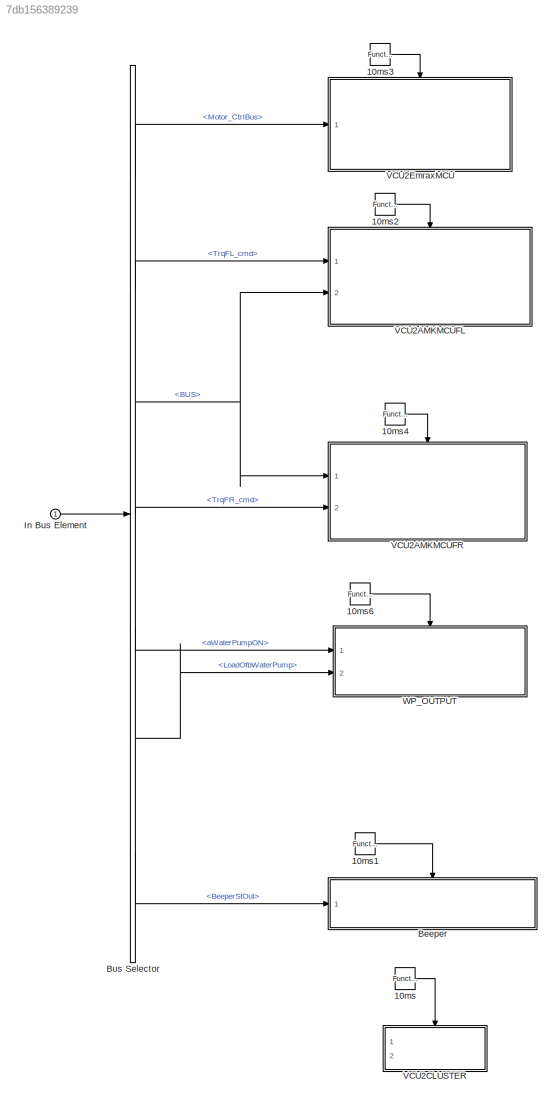
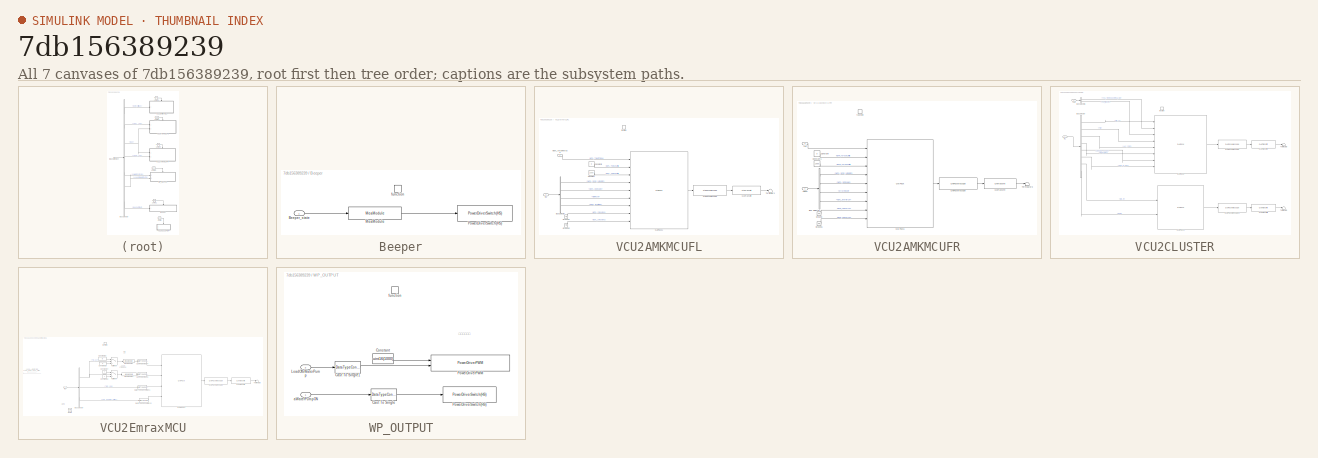
[diagram: thumbnail index - all 7 canvases of the model, root first then tree order]
MODEL slx_7db156389239
KIND model
CONFIG AbsTol = auto
CONFIG EnableMultiTasking = off
CONFIG FixedStep = auto
CONFIG MaxStep = auto
CONFIG MinStep = auto
CONFIG RelTol = 1e-3
CONFIG SampleTimeConstraint = Unconstrained
CONFIG Solver = VariableStepAuto
CONFIG SolverName = VariableStepAuto
CONFIG StartTime = 0.0
CONFIG StopTime = 10.0
BLOCK [Reference] 10ms  REF=simulink/Ports &
Subsystems/Function-Call
Generator
  Commented = on
  Ports = [0, 1]
  SourceBlock = simulink/Ports &\nSubsystems/Function-Call\nGenerator
  SourceProductBaseCode = SL
  SourceProductName = Simulink
  SourceType = Function-Call Generator
BLOCK [Reference] 10ms1  REF=simulink/Ports &
Subsystems/Function-Call
Generator
  Ports = [0, 1]
  SourceBlock = simulink/Ports &\nSubsystems/Function-Call\nGenerator
  SourceProductBaseCode = SL
  SourceProductName = Simulink
  SourceType = Function-Call Generator
BLOCK [Reference] 10ms2  REF=simulink/Ports &
Subsystems/Function-Call
Generator
  Ports = [0, 1]
  SourceBlock = simulink/Ports &\nSubsystems/Function-Call\nGenerator
  SourceProductBaseCode = SL
  SourceProductName = Simulink
  SourceType = Function-Call Generator
BLOCK [Reference] 10ms3  REF=simulink/Ports &
Subsystems/Function-Call
Generator
  Ports = [0, 1]
  SourceBlock = simulink/Ports &\nSubsystems/Function-Call\nGenerator
  SourceProductBaseCode = SL
  SourceProductName = Simulink
  SourceType = Function-Call Generator
BLOCK [Reference] 10ms4  REF=simulink/Ports &
Subsystems/Function-Call
Generator
  Ports = [0, 1]
  SourceBlock = simulink/Ports &\nSubsystems/Function-Call\nGenerator
  SourceProductBaseCode = SL
  SourceProductName = Simulink
  SourceType = Function-Call Generator
BLOCK [Reference] 10ms6  REF=simulink/Ports &
Subsystems/Function-Call
Generator
  Ports = [0, 1]
  SourceBlock = simulink/Ports &\nSubsystems/Function-Call\nGenerator
  SourceProductBaseCode = SL
  SourceProductName = Simulink
  SourceType = Function-Call Generator
BLOCK [SubSystem] Beeper
  Ports = [1, 0, 0, 1]
  RequestExecContextInheritance = off
  TreatAsAtomicUnit = on
BLOCK [Inport] Beeper/Beeper_state
  IconDisplay = Port number
BLOCK [Reference] Beeper/MeaModule  REF=ec5744lib/RapidECU_U3/07Calibration/MeaModule
  Ports = [1, 1]
  SourceBlock = ec5744lib/RapidECU_U3/07Calibration/MeaModule
  SourceProductName = ECUCoder for MPC5744
  SourceType = Measurement Module
BLOCK [Reference] Beeper/PowerDriverSwitch(HS)  REF=ec5744lib/RapidECU_U3/02PowerDriverSwitch/PowerDriverSwitch(HS)
  Ports = [1]
  SourceBlock = ec5744lib/RapidECU_U3/02PowerDriverSwitch/PowerDriverSwitch(HS)
  SourceProductName = ECUCoder for MPC5744
  SourceType = RapidECU Power Driver Switch
BLOCK [TriggerPort] Beeper/function
  Ports = []
  StatesWhenEnabling = held
  TriggerType = function-call
  VariantControl = (inherit)
BLOCK [BusSelector] Bus Selector
  OutputAsBus = off
  OutputSignals = Motor_CtrlBus,Motor_CtrlBus.TrqFL_cmd,BUS,Motor_CtrlBus.TrqFR_cmd,WP_CTRL.aWaterPumpON,WP_CTRL.LoadOfbWaterPump,BUS.BeeperStOut
  Ports = [1, 7]
BLOCK [Inport] In Bus Element
  IconDisplay = Port number
BLOCK [SubSystem] VCU2AMKMCUFL
  Ports = [2, 0, 0, 1]
  RequestExecContextInheritance = off
  TreatAsAtomicUnit = on
BLOCK [BusSelector] VCU2AMKMCUFL/Bus Selector
  OutputAsBus = off
  OutputSignals = MCFL_DCOn_setpoints,MCFL_DCEnable,errorReset,MCFL_InverterOn
  Ports = [1, 4]
BLOCK [Reference] VCU2AMKMCUFL/CAN Pack1  REF=canmsglib/CAN Pack
  Ports = [9, 1]
  SourceBlock = canmsglib/CAN Pack
  SourceProductBaseCode = VN
  SourceProductName = Vehicle Network Toolbox
  SourceType = CAN Pack
BLOCK [Reference] VCU2AMKMCUFL/CANPackMessage  REF=ec5744lib/RapidECU_U3/04CANCommunication/CANPackMessage
  Ports = [1, 1]
  SourceBlock = ec5744lib/RapidECU_U3/04CANCommunication/CANPackMessage
  SourceProductName = ECUCoder for MPC5744
  SourceType = CAN Pack Message Transmit
BLOCK [Reference] VCU2AMKMCUFL/CANTransmit  REF=ec5744lib/RapidECU_U3/04CANCommunication/CANTransmit
  Ports = [1, 1]
  SourceBlock = ec5744lib/RapidECU_U3/04CANCommunication/CANTransmit
  SourceProductName = ECUCoder for MPC5744
  SourceType = MPC5744 CAN Transmit
BLOCK [Constant] VCU2AMKMCUFL/Constant
  Value = 1000
BLOCK [Constant] VCU2AMKMCUFL/Constant1
  Value = 0
BLOCK [Ground] VCU2AMKMCUFL/Ground1
BLOCK [Ground] VCU2AMKMCUFL/Ground2
BLOCK [Inport] VCU2AMKMCUFL/In2
  IconDisplay = Port number
  Port = 2
BLOCK [Inport] VCU2AMKMCUFL/MCFL_TargetTorque
  IconDisplay = Port number
BLOCK [Terminator] VCU2AMKMCUFL/Terminator3
BLOCK [TriggerPort] VCU2AMKMCUFL/function
  Ports = []
  StatesWhenEnabling = held
  TriggerType = function-call
  VariantControl = (inherit)
BLOCK [SubSystem] VCU2AMKMCUFR
  Ports = [2, 0, 0, 1]
  RequestExecContextInheritance = off
  TreatAsAtomicUnit = on
BLOCK [Inport] VCU2AMKMCUFR/<BUS>
  IconDisplay = Port number
BLOCK [BusSelector] VCU2AMKMCUFR/Bus Selector
  OutputAsBus = off
  OutputSignals = MCFL_DCOn_setpoints,MCFL_DCEnable,errorReset,MCFL_InverterOn
  Ports = [1, 4]
BLOCK [Reference] VCU2AMKMCUFR/CAN Pack1  REF=canmsglib/CAN Pack
  Ports = [9, 1]
  SourceBlock = canmsglib/CAN Pack
  SourceProductBaseCode = VN
  SourceProductName = Vehicle Network Toolbox
  SourceType = CAN Pack
BLOCK [Reference] VCU2AMKMCUFR/CANPackMessage  REF=ec5744lib/RapidECU_U3/04CANCommunication/CANPackMessage
  Ports = [1, 1]
  SourceBlock = ec5744lib/RapidECU_U3/04CANCommunication/CANPackMessage
  SourceProductName = ECUCoder for MPC5744
  SourceType = CAN Pack Message Transmit
BLOCK [Reference] VCU2AMKMCUFR/CANTransmit  REF=ec5744lib/RapidECU_U3/04CANCommunication/CANTransmit
  Ports = [1, 1]
  SourceBlock = ec5744lib/RapidECU_U3/04CANCommunication/CANTransmit
  SourceProductName = ECUCoder for MPC5744
  SourceType = MPC5744 CAN Transmit
BLOCK [Constant] VCU2AMKMCUFR/Constant
  Value = 0
BLOCK [Constant] VCU2AMKMCUFR/Constant1
  Value = 1000
BLOCK [Ground] VCU2AMKMCUFR/Ground
BLOCK [Ground] VCU2AMKMCUFR/Ground1
BLOCK [Inport] VCU2AMKMCUFR/In1
  IconDisplay = Port number
  Port = 2
BLOCK [Terminator] VCU2AMKMCUFR/Terminator3
BLOCK [TriggerPort] VCU2AMKMCUFR/function
  Ports = []
  StatesWhenEnabling = held
  TriggerType = function-call
  VariantControl = (inherit)
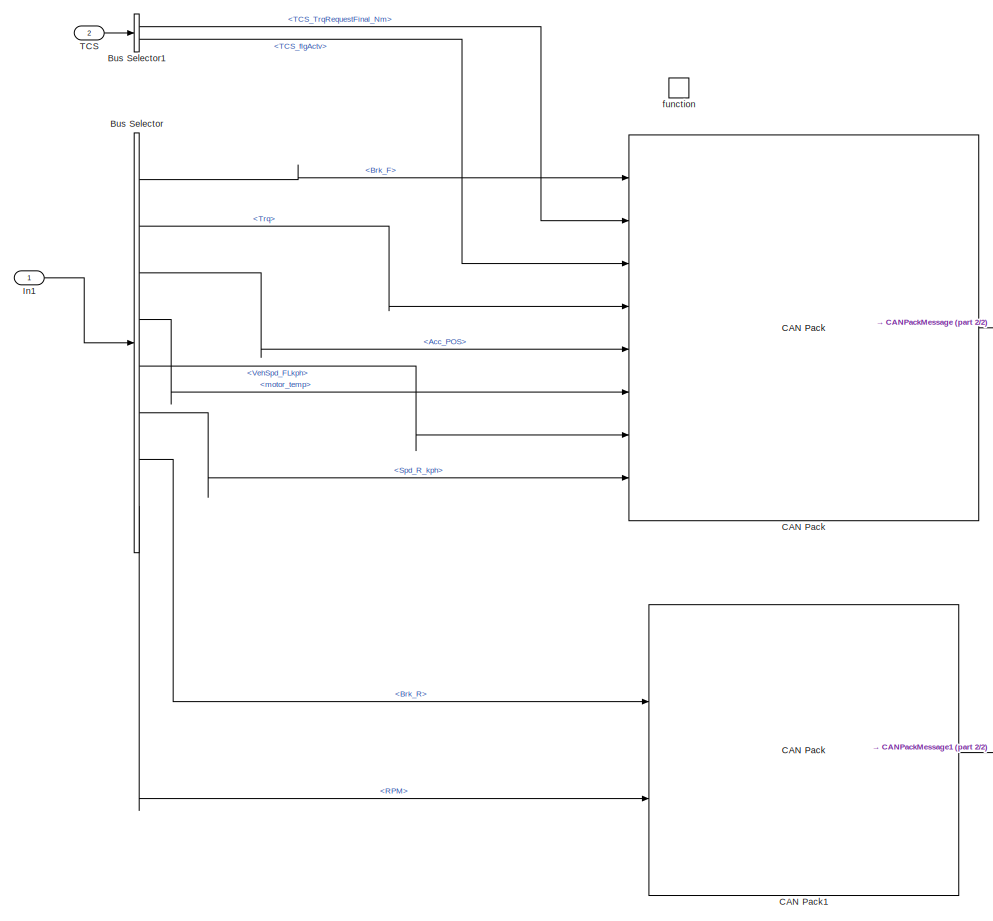
[diagram: VCU2CLUSTER - part 1/2, left side, full height]
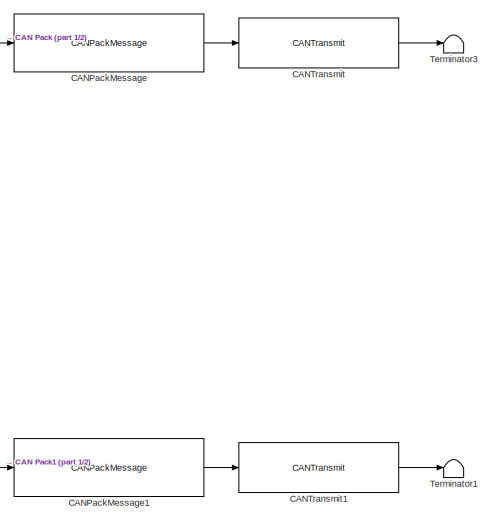
[diagram: VCU2CLUSTER - part 2/2, middle right region]
BLOCK [SubSystem] VCU2CLUSTER
  Commented = on
  Ports = [2, 0, 0, 1]
  RequestExecContextInheritance = off
  TreatAsAtomicUnit = on
BLOCK [BusSelector] VCU2CLUSTER/Bus Selector
  OutputAsBus = off
  OutputSignals = signal2.APPBrk_BUS.Brk_F,signal2.MCU.MCU_state.Trq,signal2.APPBrk_BUS.Acc_POS,signal2.MCU.MCU_pwr.motor_temp,signal2.VehSpd_FLkph,signal2.MCU.MCU_state.Spd_R_kph,signal2.APPBrk_BUS.Brk_R,signal2.MCU.MCU_state.RPM
  Ports = [1, 8]
BLOCK [BusSelector] VCU2CLUSTER/Bus Selector1
  OutputAsBus = off
  OutputSignals = TCS_TrqRequestFinal_Nm,TCS_flgActv
  Ports = [1, 2]
BLOCK [Reference] VCU2CLUSTER/CAN Pack  REF=canmsglib/CAN Pack
  Ports = [8, 1]
  SourceBlock = canmsglib/CAN Pack
  SourceProductBaseCode = VN
  SourceProductName = Vehicle Network Toolbox
  SourceType = CAN Pack
BLOCK [Reference] VCU2CLUSTER/CAN Pack1  REF=canmsglib/CAN Pack
  Ports = [2, 1]
  SourceBlock = canmsglib/CAN Pack
  SourceProductBaseCode = XP
  SourceProductName = Simulink Real-Time
  SourceType = CAN Pack
BLOCK [Reference] VCU2CLUSTER/CANPackMessage  REF=ec5744lib/RapidECU_U3/04CANCommunication/CANPackMessage
  Ports = [1, 1]
  SourceBlock = ec5744lib/RapidECU_U3/04CANCommunication/CANPackMessage
  SourceProductName = ECUCoder for MPC5744
  SourceType = CAN Pack Message Transmit
BLOCK [Reference] VCU2CLUSTER/CANPackMessage1  REF=ec5744lib/HYFCU001/04CANCommunication/CANPackMessage
  Ports = [1, 1]
  SourceBlock = ec5744lib/HYFCU001/04CANCommunication/CANPackMessage
  SourceProductName = ECUCoder for MPC5744
  SourceType = CAN Pack Message Transmit
BLOCK [Reference] VCU2CLUSTER/CANTransmit  REF=ec5744lib/RapidECU_U3/04CANCommunication/CANTransmit
  Ports = [1, 1]
  SourceBlock = ec5744lib/RapidECU_U3/04CANCommunication/CANTransmit
  SourceProductName = ECUCoder for MPC5744
  SourceType = MPC5744 CAN Transmit
BLOCK [Reference] VCU2CLUSTER/CANTransmit1  REF=ec5744lib/RapidECU_U3/04CANCommunication/CANTransmit
  Ports = [1, 1]
  SourceBlock = ec5744lib/RapidECU_U3/04CANCommunication/CANTransmit
  SourceProductName = ECUCoder for MPC5744
  SourceType = MPC5744 CAN Transmit
BLOCK [Inport] VCU2CLUSTER/In1
  IconDisplay = Port number
BLOCK [Inport] VCU2CLUSTER/TCS
  IconDisplay = Port number
  Port = 2
BLOCK [Terminator] VCU2CLUSTER/Terminator1
BLOCK [Terminator] VCU2CLUSTER/Terminator3
BLOCK [TriggerPort] VCU2CLUSTER/function
  Ports = []
  StatesWhenEnabling = held
  TriggerType = function-call
  VariantControl = Variant
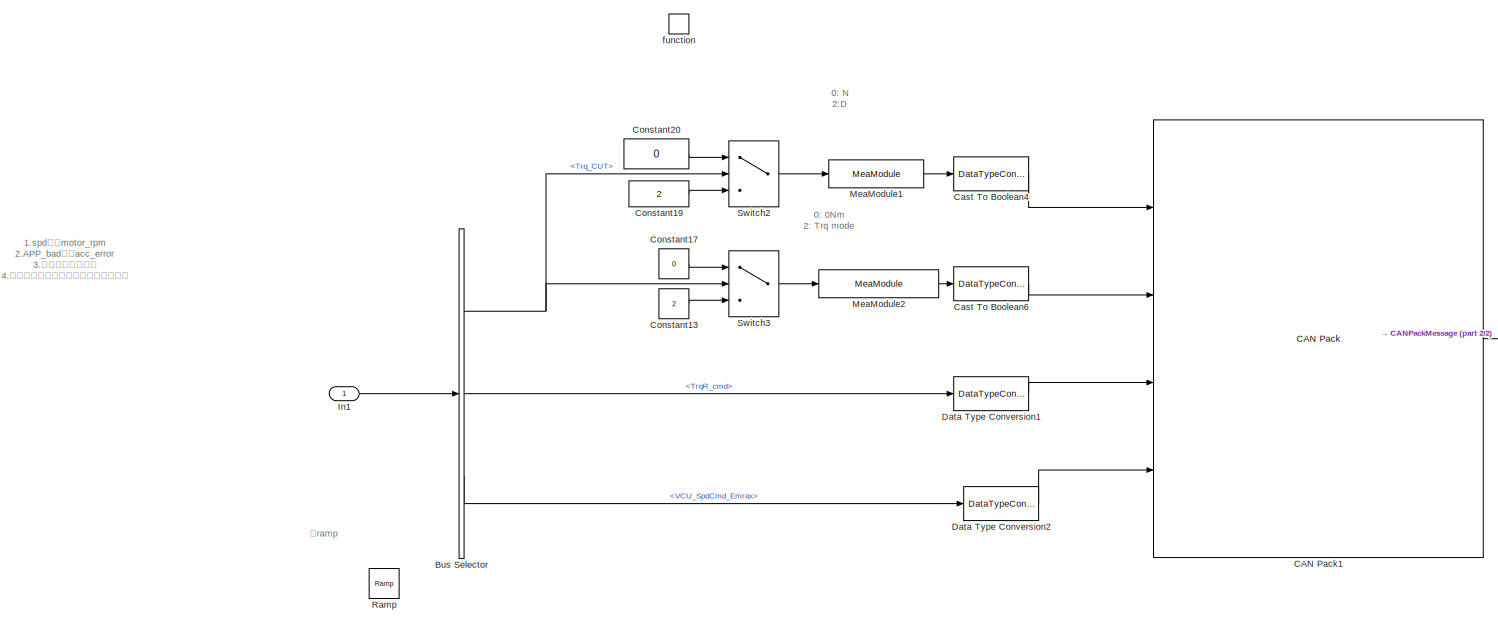
[diagram: VCU2EmraxMCU - part 1/2, most of the canvas]
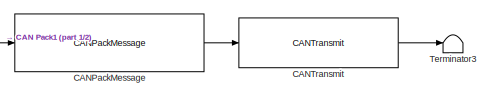
[diagram: VCU2EmraxMCU - part 2/2, middle right region]
BLOCK [SubSystem] VCU2EmraxMCU
  Ports = [1, 0, 0, 1]
  RequestExecContextInheritance = off
  TreatAsAtomicUnit = on
BLOCK [BusSelector] VCU2EmraxMCU/Bus Selector
  OutputAsBus = off
  OutputSignals = Trq_CUT,TrqR_cmd,VCU_SpdCmd_Emrax
  Ports = [1, 3]
BLOCK [Reference] VCU2EmraxMCU/CAN Pack1  REF=canmsglib/CAN Pack
  Ports = [4, 1]
  SourceBlock = canmsglib/CAN Pack
  SourceProductBaseCode = VN
  SourceProductName = Vehicle Network Toolbox
  SourceType = CAN Pack
BLOCK [Reference] VCU2EmraxMCU/CANPackMessage  REF=ec5744lib/RapidECU_U3/04CANCommunication/CANPackMessage
  Ports = [1, 1]
  SourceBlock = ec5744lib/RapidECU_U3/04CANCommunication/CANPackMessage
  SourceProductName = ECUCoder for MPC5744
  SourceType = CAN Pack Message Transmit
BLOCK [Reference] VCU2EmraxMCU/CANTransmit  REF=ec5744lib/RapidECU_U3/04CANCommunication/CANTransmit
  Ports = [1, 1]
  SourceBlock = ec5744lib/RapidECU_U3/04CANCommunication/CANTransmit
  SourceProductName = ECUCoder for MPC5744
  SourceType = MPC5744 CAN Transmit
BLOCK [DataTypeConversion] VCU2EmraxMCU/Cast To Boolean4
  OutDataTypeStr = uint16
  RndMeth = Floor
  SaturateOnIntegerOverflow = off
BLOCK [DataTypeConversion] VCU2EmraxMCU/Cast To Boolean6
  OutDataTypeStr = uint16
  RndMeth = Floor
  SaturateOnIntegerOverflow = off
BLOCK [Constant] VCU2EmraxMCU/Constant13
  Value = 2
BLOCK [Constant] VCU2EmraxMCU/Constant17
  Value = 0
BLOCK [Constant] VCU2EmraxMCU/Constant19
  Value = 2
BLOCK [Constant] VCU2EmraxMCU/Constant20
  Value = 0
BLOCK [DataTypeConversion] VCU2EmraxMCU/Data Type Conversion1
  OutDataTypeStr = single
  RndMeth = Floor
  SaturateOnIntegerOverflow = off
BLOCK [DataTypeConversion] VCU2EmraxMCU/Data Type Conversion2
  OutDataTypeStr = int32
  RndMeth = Floor
  SaturateOnIntegerOverflow = off
BLOCK [Inport] VCU2EmraxMCU/In1
  IconDisplay = Port number
BLOCK [Reference] VCU2EmraxMCU/MeaModule1  REF=ec5744lib/HYFCU001/07Calibration/MeaModule
  Ports = [1, 1]
  SourceBlock = ec5744lib/HYFCU001/07Calibration/MeaModule
  SourceProductName = ECUCoder for MPC5744
  SourceType = Measurement Module
BLOCK [Reference] VCU2EmraxMCU/MeaModule2  REF=ec5744lib/HYFCU001/07Calibration/MeaModule
  Ports = [1, 1]
  SourceBlock = ec5744lib/HYFCU001/07Calibration/MeaModule
  SourceProductName = ECUCoder for MPC5744
  SourceType = Measurement Module
BLOCK [Reference] VCU2EmraxMCU/Ramp  REF=simulink/Sources/Ramp
  Commented = on
  Ports = [0, 1]
  SourceBlock = simulink/Sources/Ramp
  SourceProductBaseCode = SL
  SourceProductName = Simulink
  SourceType = Ramp
BLOCK [Switch] VCU2EmraxMCU/Switch2
  Criteria = u2 > Threshold
  InputSameDT = off
  SaturateOnIntegerOverflow = off
BLOCK [Switch] VCU2EmraxMCU/Switch3
  Criteria = u2 > Threshold
  InputSameDT = off
  SaturateOnIntegerOverflow = off
BLOCK [Terminator] VCU2EmraxMCU/Terminator3
BLOCK [TriggerPort] VCU2EmraxMCU/function
  Ports = []
  StatesWhenEnabling = held
  TriggerType = function-call
  VariantControl = (inherit)
BLOCK [SubSystem] WP_OUTPUT
  Ports = [2, 0, 0, 1]
  RequestExecContextInheritance = off
  TreatAsAtomicUnit = on
BLOCK [DataTypeConversion] WP_OUTPUT/Cast To Single
  OutDataTypeStr = boolean
  RndMeth = Floor
  SaturateOnIntegerOverflow = off
BLOCK [DataTypeConversion] WP_OUTPUT/Cast To Single1
  OutDataTypeStr = uint16
  RndMeth = Floor
  SaturateOnIntegerOverflow = off
BLOCK [Constant] WP_OUTPUT/Constant
  OutDataTypeStr = uint16
  SampleTime = -1
  Value = uint16(1000)
BLOCK [Inport] WP_OUTPUT/LoadOfbWaterPump
  IconDisplay = Port number
  Port = 2
BLOCK [Reference] WP_OUTPUT/PowerDriverPWM  REF=ec5744lib/RapidECU_U3/03PowerDriverPWM/PowerDriverPWM
  Ports = [2]
  SourceBlock = ec5744lib/RapidECU_U3/03PowerDriverPWM/PowerDriverPWM
  SourceProductName = ECUCoder for MPC5744
  SourceType = RapidECU Power Driver PWM
BLOCK [Reference] WP_OUTPUT/PowerDriverSwitch(HS)  REF=ec5744lib/RapidECU_U3/02PowerDriverSwitch/PowerDriverSwitch(HS)
  Ports = [1]
  SourceBlock = ec5744lib/RapidECU_U3/02PowerDriverSwitch/PowerDriverSwitch(HS)
  SourceProductName = ECUCoder for MPC5744
  SourceType = RapidECU Power Driver Switch
BLOCK [Inport] WP_OUTPUT/aWaterPumpON
  IconDisplay = Port number
BLOCK [TriggerPort] WP_OUTPUT/function
  Ports = []
  StatesWhenEnabling = held
  TriggerType = function-call
  VariantControl = (inherit)
ANNOTATION VCU2EmraxMCU: 0: 0Nm 2: Trq mode
ANNOTATION VCU2EmraxMCU: 0: N 2:D
ANNOTATION VCU2EmraxMCU: 1.spd改成motor_rpm 2.APP_bad改成acc_error 3.设置模式的优先级 4.车轮低负载（悬空），加最高车速限制
ANNOTATION VCU2EmraxMCU: 加ramp
ANNOTATION WP_OUTPUT: 数据类型转换
LINE 10ms1:1 -> Beeper:trigger
LINE 10ms2:1 -> VCU2AMKMCUFL:trigger
LINE 10ms3:1 -> VCU2EmraxMCU:trigger
LINE 10ms4:1 -> VCU2AMKMCUFR:trigger
LINE 10ms6:1 -> WP_OUTPUT:trigger
LINE 10ms:1 -> VCU2CLUSTER:trigger
LINE Beeper/Beeper_state:1 -> Beeper/MeaModule:1
LINE Beeper/MeaModule:1 -> Beeper/PowerDriverSwitch(HS):1
LINE Bus Selector:1 -> VCU2EmraxMCU:1
LINE Bus Selector:2 -> VCU2AMKMCUFL:1
NET Bus Selector:3 -> VCU2AMKMCUFL:2, VCU2AMKMCUFR:1
LINE Bus Selector:4 -> VCU2AMKMCUFR:2
LINE Bus Selector:5 -> WP_OUTPUT:1
LINE Bus Selector:6 -> WP_OUTPUT:2
LINE Bus Selector:7 -> Beeper:1
LINE In Bus Element:1 -> Bus Selector:1
LINE VCU2AMKMCUFL/Bus Selector:1 -> VCU2AMKMCUFL/CAN Pack1:4
LINE VCU2AMKMCUFL/Bus Selector:2 -> VCU2AMKMCUFL/CAN Pack1:5
LINE VCU2AMKMCUFL/Bus Selector:3 -> VCU2AMKMCUFL/CAN Pack1:6
LINE VCU2AMKMCUFL/Bus Selector:4 -> VCU2AMKMCUFL/CAN Pack1:7
LINE VCU2AMKMCUFL/CAN Pack1:1 -> VCU2AMKMCUFL/CANPackMessage:1
LINE VCU2AMKMCUFL/CANPackMessage:1 -> VCU2AMKMCUFL/CANTransmit:1
LINE VCU2AMKMCUFL/CANTransmit:1 -> VCU2AMKMCUFL/Terminator3:1
LINE VCU2AMKMCUFL/Constant1:1 -> VCU2AMKMCUFL/CAN Pack1:2
LINE VCU2AMKMCUFL/Constant:1 -> VCU2AMKMCUFL/CAN Pack1:3
LINE VCU2AMKMCUFL/Ground1:1 -> VCU2AMKMCUFL/CAN Pack1:8
LINE VCU2AMKMCUFL/Ground2:1 -> VCU2AMKMCUFL/CAN Pack1:9
LINE VCU2AMKMCUFL/In2:1 -> VCU2AMKMCUFL/Bus Selector:1
LINE VCU2AMKMCUFL/MCFL_TargetTorque:1 -> VCU2AMKMCUFL/CAN Pack1:1
LINE VCU2AMKMCUFR/<BUS>:1 -> VCU2AMKMCUFR/Bus Selector:1
LINE VCU2AMKMCUFR/Bus Selector:1 -> VCU2AMKMCUFR/CAN Pack1:4
LINE VCU2AMKMCUFR/Bus Selector:2 -> VCU2AMKMCUFR/CAN Pack1:5
LINE VCU2AMKMCUFR/Bus Selector:3 -> VCU2AMKMCUFR/CAN Pack1:6
LINE VCU2AMKMCUFR/Bus Selector:4 -> VCU2AMKMCUFR/CAN Pack1:7
LINE VCU2AMKMCUFR/CAN Pack1:1 -> VCU2AMKMCUFR/CANPackMessage:1
LINE VCU2AMKMCUFR/CANPackMessage:1 -> VCU2AMKMCUFR/CANTransmit:1
LINE VCU2AMKMCUFR/CANTransmit:1 -> VCU2AMKMCUFR/Terminator3:1
LINE VCU2AMKMCUFR/Constant1:1 -> VCU2AMKMCUFR/CAN Pack1:3
LINE VCU2AMKMCUFR/Constant:1 -> VCU2AMKMCUFR/CAN Pack1:2
LINE VCU2AMKMCUFR/Ground1:1 -> VCU2AMKMCUFR/CAN Pack1:9
LINE VCU2AMKMCUFR/Ground:1 -> VCU2AMKMCUFR/CAN Pack1:8
LINE VCU2AMKMCUFR/In1:1 -> VCU2AMKMCUFR/CAN Pack1:1
LINE VCU2CLUSTER/Bus Selector1:1 -> VCU2CLUSTER/CAN Pack:2
LINE VCU2CLUSTER/Bus Selector1:2 -> VCU2CLUSTER/CAN Pack:3
LINE VCU2CLUSTER/Bus Selector:1 -> VCU2CLUSTER/CAN Pack:1
LINE VCU2CLUSTER/Bus Selector:2 -> VCU2CLUSTER/CAN Pack:4
LINE VCU2CLUSTER/Bus Selector:3 -> VCU2CLUSTER/CAN Pack:5
LINE VCU2CLUSTER/Bus Selector:4 -> VCU2CLUSTER/CAN Pack:6
LINE VCU2CLUSTER/Bus Selector:5 -> VCU2CLUSTER/CAN Pack:7
LINE VCU2CLUSTER/Bus Selector:6 -> VCU2CLUSTER/CAN Pack:8
LINE VCU2CLUSTER/Bus Selector:7 -> VCU2CLUSTER/CAN Pack1:1
LINE VCU2CLUSTER/Bus Selector:8 -> VCU2CLUSTER/CAN Pack1:2
LINE VCU2CLUSTER/CAN Pack1:1 -> VCU2CLUSTER/CANPackMessage1:1
LINE VCU2CLUSTER/CAN Pack:1 -> VCU2CLUSTER/CANPackMessage:1
LINE VCU2CLUSTER/CANPackMessage1:1 -> VCU2CLUSTER/CANTransmit1:1
LINE VCU2CLUSTER/CANPackMessage:1 -> VCU2CLUSTER/CANTransmit:1
LINE VCU2CLUSTER/CANTransmit1:1 -> VCU2CLUSTER/Terminator1:1
LINE VCU2CLUSTER/CANTransmit:1 -> VCU2CLUSTER/Terminator3:1
LINE VCU2CLUSTER/In1:1 -> VCU2CLUSTER/Bus Selector:1
LINE VCU2CLUSTER/TCS:1 -> VCU2CLUSTER/Bus Selector1:1
NET VCU2EmraxMCU/Bus Selector:1 -> VCU2EmraxMCU/Switch2:2, VCU2EmraxMCU/Switch3:2
LINE VCU2EmraxMCU/Bus Selector:2 -> VCU2EmraxMCU/Data Type Conversion1:1
LINE VCU2EmraxMCU/Bus Selector:3 -> VCU2EmraxMCU/Data Type Conversion2:1
LINE VCU2EmraxMCU/CAN Pack1:1 -> VCU2EmraxMCU/CANPackMessage:1
LINE VCU2EmraxMCU/CANPackMessage:1 -> VCU2EmraxMCU/CANTransmit:1
LINE VCU2EmraxMCU/CANTransmit:1 -> VCU2EmraxMCU/Terminator3:1
LINE VCU2EmraxMCU/Cast To Boolean4:1 -> VCU2EmraxMCU/CAN Pack1:1
LINE VCU2EmraxMCU/Cast To Boolean6:1 -> VCU2EmraxMCU/CAN Pack1:2
LINE VCU2EmraxMCU/Constant13:1 -> VCU2EmraxMCU/Switch3:3
LINE VCU2EmraxMCU/Constant17:1 -> VCU2EmraxMCU/Switch3:1
LINE VCU2EmraxMCU/Constant19:1 -> VCU2EmraxMCU/Switch2:3
LINE VCU2EmraxMCU/Constant20:1 -> VCU2EmraxMCU/Switch2:1
LINE VCU2EmraxMCU/Data Type Conversion1:1 -> VCU2EmraxMCU/CAN Pack1:3
LINE VCU2EmraxMCU/Data Type Conversion2:1 -> VCU2EmraxMCU/CAN Pack1:4
LINE VCU2EmraxMCU/In1:1 -> VCU2EmraxMCU/Bus Selector:1
LINE VCU2EmraxMCU/MeaModule1:1 -> VCU2EmraxMCU/Cast To Boolean4:1
LINE VCU2EmraxMCU/MeaModule2:1 -> VCU2EmraxMCU/Cast To Boolean6:1
LINE VCU2EmraxMCU/Switch2:1 -> VCU2EmraxMCU/MeaModule1:1
LINE VCU2EmraxMCU/Switch3:1 -> VCU2EmraxMCU/MeaModule2:1
LINE WP_OUTPUT/Cast To Single1:1 -> WP_OUTPUT/PowerDriverPWM:2
LINE WP_OUTPUT/Cast To Single:1 -> WP_OUTPUT/PowerDriverSwitch(HS):1
LINE WP_OUTPUT/Constant:1 -> WP_OUTPUT/PowerDriverPWM:1
LINE WP_OUTPUT/LoadOfbWaterPump:1 -> WP_OUTPUT/Cast To Single1:1
LINE WP_OUTPUT/aWaterPumpON:1 -> WP_OUTPUT/Cast To Single:1
note: NET lines group one-source signal fan-out (src -> all destinations, sorted); 1:1 wires keep LINE
